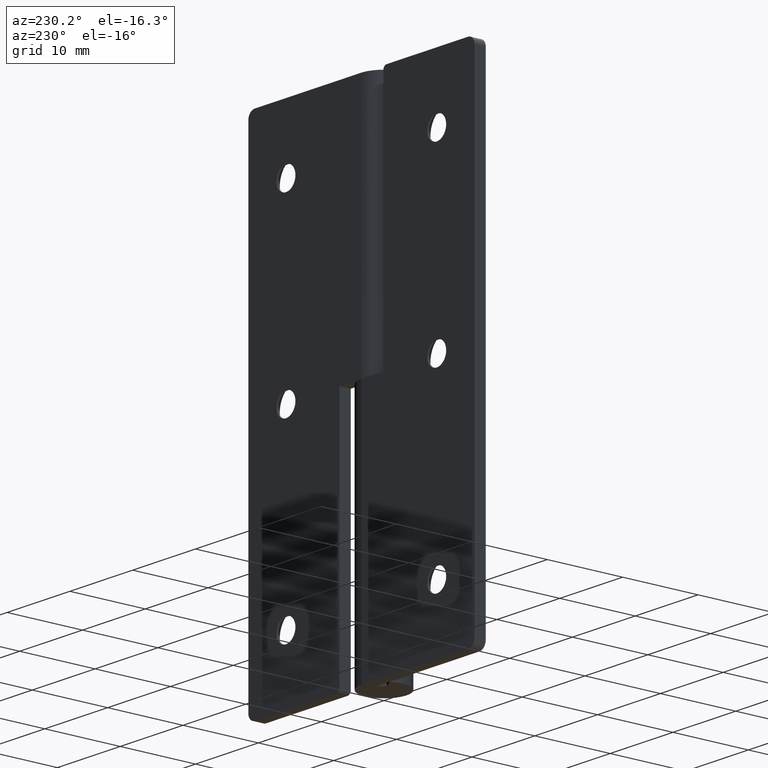
[diagram: clean part render]
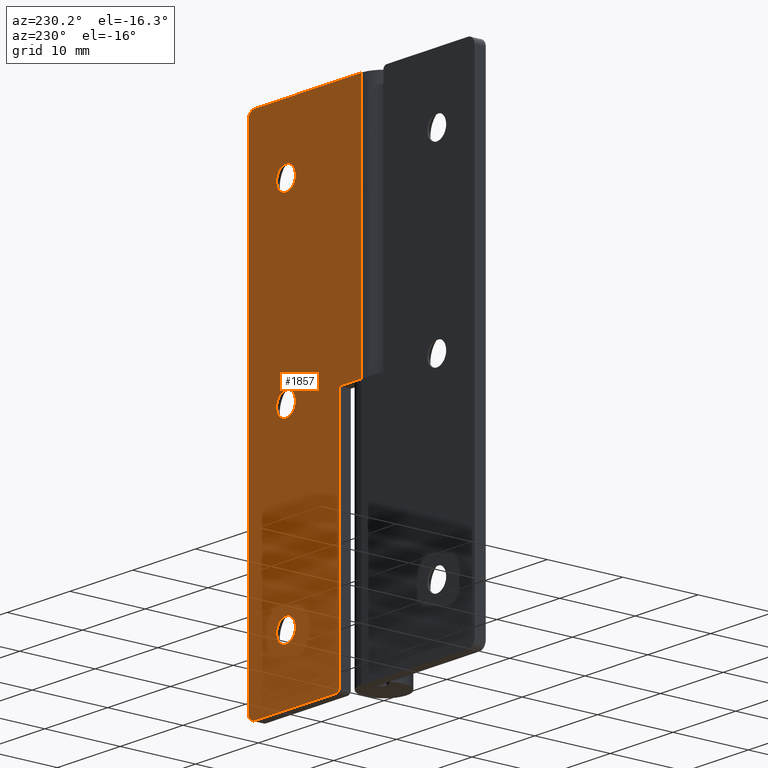
[diagram: same view with one face highlighted and labeled with its STEP entity id]
A machine part, auxiliary view. The second image highlights one B-rep face of the part: STEP entity #1857.
In plain terms, the highlighted face is a freeform B-spline surface patch.
Its self-contained STEP definition (entity closure, byte-faithful):
#553=CARTESIAN_POINT('',(13.489514289519180,3.0,56.677051352206547));
#554=VERTEX_POINT('',#553);
#560=CARTESIAN_POINT('',(12.0,3.0,55.0));
#561=VERTEX_POINT('',#560);
#562=CARTESIAN_POINT('',(13.489514289519184,2.999999999999999,56.677051352206547));
#563=CARTESIAN_POINT('',(13.499999999999996,3.000000000000000,56.588836179701616));
#564=CARTESIAN_POINT('',(13.500000000000000,3.0,56.500000000000000));
#565=CARTESIAN_POINT('',(13.500000000000000,3.0,55.000000000000007));
#566=CARTESIAN_POINT('',(12.0,3.0,55.0));
#574=(BOUNDED_CURVE()B_SPLINE_CURVE(2,(#562,#563,#564,#565,#566),.UNSPECIFIED.,.F.,.U.)B_SPLINE_CURVE_WITH_KNOTS((3,2,3),(0.229562473465401,0.250000000000000,0.500000000000000),.UNSPECIFIED.)CURVE()GEOMETRIC_REPRESENTATION_ITEM()RATIONAL_B_SPLINE_CURVE((0.956026754089407,0.976055948274784,1.0,0.707106781186548,1.0))REPRESENTATION_ITEM(''));
#575=EDGE_CURVE('',#554,#561,#574,.T.);
#577=CARTESIAN_POINT('',(10.502797802390299,3.0,56.408427190320083));
#578=VERTEX_POINT('',#577);
#579=CARTESIAN_POINT('',(12.0,3.0,55.0));
#580=CARTESIAN_POINT('',(10.588940900354590,3.0,55.0));
#581=CARTESIAN_POINT('',(10.502797802390301,3.0,56.408427190320083));
#589=(BOUNDED_CURVE()B_SPLINE_CURVE(2,(#579,#580,#581),.UNSPECIFIED.,.F.,.U.)B_SPLINE_CURVE_WITH_KNOTS((3,3),(0.500000000000000,0.739332962154928),.UNSPECIFIED.)CURVE()GEOMETRIC_REPRESENTATION_ITEM()RATIONAL_B_SPLINE_CURVE((1.0,0.719603993385140,0.976072041486657))REPRESENTATION_ITEM(''));
#590=EDGE_CURVE('',#561,#578,#589,.T.);
#624=CARTESIAN_POINT('',(12.0,3.0,58.0));
#625=VERTEX_POINT('',#624);
#626=CARTESIAN_POINT('',(10.502797802390294,3.000000000000000,56.408427190320090));
#627=CARTESIAN_POINT('',(10.500000000000002,3.000000000000000,56.454170854673421));
#628=CARTESIAN_POINT('',(10.500000000000000,3.0,56.500000000000000));
#629=CARTESIAN_POINT('',(10.500000000000002,3.0,58.0));
#630=CARTESIAN_POINT('',(12.0,3.0,58.0));
#638=(BOUNDED_CURVE()B_SPLINE_CURVE(2,(#626,#627,#628,#629,#630),.UNSPECIFIED.,.F.,.U.)B_SPLINE_CURVE_WITH_KNOTS((3,2,3),(0.739332962154928,0.750000000000000,1.0),.UNSPECIFIED.)CURVE()GEOMETRIC_REPRESENTATION_ITEM()RATIONAL_B_SPLINE_CURVE((0.976072041486657,0.987502787801407,1.0,0.707106781186548,1.0))REPRESENTATION_ITEM(''));
#639=EDGE_CURVE('',#578,#625,#638,.T.);
#641=CARTESIAN_POINT('',(12.0,3.0,58.0));
#642=CARTESIAN_POINT('',(13.332261788528195,3.0,58.0));
#643=CARTESIAN_POINT('',(13.489514289519184,2.999999999999999,56.677051352206547));
#651=(BOUNDED_CURVE()B_SPLINE_CURVE(2,(#641,#642,#643),.UNSPECIFIED.,.F.,.U.)B_SPLINE_CURVE_WITH_KNOTS((3,3),(0.0,0.229562473465401),.UNSPECIFIED.)CURVE()GEOMETRIC_REPRESENTATION_ITEM()RATIONAL_B_SPLINE_CURVE((1.0,0.731050832911764,0.956026754089407))REPRESENTATION_ITEM(''));
#652=EDGE_CURVE('',#625,#554,#651,.T.);
#897=CARTESIAN_POINT('',(13.489514289519180,3.0,32.677051352206547));
#898=VERTEX_POINT('',#897);
#904=CARTESIAN_POINT('',(12.0,3.0,31.0));
#905=VERTEX_POINT('',#904);
#906=CARTESIAN_POINT('',(13.489514289519182,3.000000000000000,32.677051352206554));
#907=CARTESIAN_POINT('',(13.500000000000002,3.000000000000000,32.588836179701616));
#908=CARTESIAN_POINT('',(13.500000000000000,3.0,32.500000000000000));
#909=CARTESIAN_POINT('',(13.500000000000000,3.0,31.000000000000007));
#910=CARTESIAN_POINT('',(12.0,3.0,31.0));
#918=(BOUNDED_CURVE()B_SPLINE_CURVE(2,(#906,#907,#908,#909,#910),.UNSPECIFIED.,.F.,.U.)B_SPLINE_CURVE_WITH_KNOTS((3,2,3),(0.229562473465401,0.250000000000000,0.500000000000000),.UNSPECIFIED.)CURVE()GEOMETRIC_REPRESENTATION_ITEM()RATIONAL_B_SPLINE_CURVE((0.956026754089407,0.976055948274784,1.0,0.707106781186548,1.0))REPRESENTATION_ITEM(''));
#919=EDGE_CURVE('',#898,#905,#918,.T.);
#921=CARTESIAN_POINT('',(10.502797802390299,3.0,32.408427190320097));
#922=VERTEX_POINT('',#921);
#923=CARTESIAN_POINT('',(12.0,3.0,31.0));
#924=CARTESIAN_POINT('',(10.588940900354572,3.0,31.000000000000004));
#925=CARTESIAN_POINT('',(10.502797802390301,2.999999999999999,32.408427190320097));
#933=(BOUNDED_CURVE()B_SPLINE_CURVE(2,(#923,#924,#925),.UNSPECIFIED.,.F.,.U.)B_SPLINE_CURVE_WITH_KNOTS((3,3),(0.500000000000000,0.739332962154930),.UNSPECIFIED.)CURVE()GEOMETRIC_REPRESENTATION_ITEM()RATIONAL_B_SPLINE_CURVE((1.0,0.719603993385137,0.976072041486662))REPRESENTATION_ITEM(''));
#934=EDGE_CURVE('',#905,#922,#933,.T.);
#968=CARTESIAN_POINT('',(12.0,3.0,34.0));
#969=VERTEX_POINT('',#968);
#970=CARTESIAN_POINT('',(10.502797802390296,3.000000000000000,32.408427190320090));
#971=CARTESIAN_POINT('',(10.500000000000007,3.000000000000000,32.454170854673436));
#972=CARTESIAN_POINT('',(10.500000000000000,3.0,32.500000000000000));
#973=CARTESIAN_POINT('',(10.500000000000002,3.0,34.000000000000007));
#974=CARTESIAN_POINT('',(12.0,3.0,34.0));
#982=(BOUNDED_CURVE()B_SPLINE_CURVE(2,(#970,#971,#972,#973,#974),.UNSPECIFIED.,.F.,.U.)B_SPLINE_CURVE_WITH_KNOTS((3,2,3),(0.739332962154929,0.750000000000000,1.0),.UNSPECIFIED.)CURVE()GEOMETRIC_REPRESENTATION_ITEM()RATIONAL_B_SPLINE_CURVE((0.976072041486660,0.987502787801409,1.0,0.707106781186548,1.0))REPRESENTATION_ITEM(''));
#983=EDGE_CURVE('',#922,#969,#982,.T.);
#985=CARTESIAN_POINT('',(12.0,3.0,34.0));
#986=CARTESIAN_POINT('',(13.332261788528191,3.000000000000001,34.0));
#987=CARTESIAN_POINT('',(13.489514289519184,3.0,32.677051352206547));
#995=(BOUNDED_CURVE()B_SPLINE_CURVE(2,(#985,#986,#987),.UNSPECIFIED.,.F.,.U.)B_SPLINE_CURVE_WITH_KNOTS((3,3),(0.0,0.229562473465401),.UNSPECIFIED.)CURVE()GEOMETRIC_REPRESENTATION_ITEM()RATIONAL_B_SPLINE_CURVE((1.0,0.731050832911764,0.956026754089406))REPRESENTATION_ITEM(''));
#996=EDGE_CURVE('',#969,#898,#995,.T.);
#1241=CARTESIAN_POINT('',(13.489514289519180,3.0,8.677051352206449));
#1242=VERTEX_POINT('',#1241);
#1248=CARTESIAN_POINT('',(12.0,3.0,6.999999999999901));
#1249=VERTEX_POINT('',#1248);
#1250=CARTESIAN_POINT('',(13.489514289519184,3.0,8.677051352206449));
#1251=CARTESIAN_POINT('',(13.500000000000004,3.000000000000000,8.588836179701518));
#1252=CARTESIAN_POINT('',(13.500000000000000,3.0,8.499999999999901));
#1253=CARTESIAN_POINT('',(13.500000000000000,3.0,6.999999999999899));
#1254=CARTESIAN_POINT('',(12.0,3.0,6.999999999999901));
#1262=(BOUNDED_CURVE()B_SPLINE_CURVE(2,(#1250,#1251,#1252,#1253,#1254),.UNSPECIFIED.,.F.,.U.)B_SPLINE_CURVE_WITH_KNOTS((3,2,3),(0.229562473465401,0.250000000000000,0.500000000000000),.UNSPECIFIED.)CURVE()GEOMETRIC_REPRESENTATION_ITEM()RATIONAL_B_SPLINE_CURVE((0.956026754089406,0.976055948274783,1.0,0.707106781186548,1.0))REPRESENTATION_ITEM(''));
#1263=EDGE_CURVE('',#1242,#1249,#1262,.T.);
#1265=CARTESIAN_POINT('',(10.502797802390299,3.0,8.408427190319991));
#1266=VERTEX_POINT('',#1265);
#1267=CARTESIAN_POINT('',(12.0,3.0,6.999999999999901));
#1268=CARTESIAN_POINT('',(10.588940900354572,3.0,6.999999999999900));
#1269=CARTESIAN_POINT('',(10.502797802390301,2.999999999999999,8.408427190319991));
#1277=(BOUNDED_CURVE()B_SPLINE_CURVE(2,(#1267,#1268,#1269),.UNSPECIFIED.,.F.,.U.)B_SPLINE_CURVE_WITH_KNOTS((3,3),(0.500000000000000,0.739332962154930),.UNSPECIFIED.)CURVE()GEOMETRIC_REPRESENTATION_ITEM()RATIONAL_B_SPLINE_CURVE((1.0,0.719603993385137,0.976072041486662))REPRESENTATION_ITEM(''));
#1278=EDGE_CURVE('',#1249,#1266,#1277,.T.);
#1312=CARTESIAN_POINT('',(12.0,3.0,9.999999999999899));
#1313=VERTEX_POINT('',#1312);
#1314=CARTESIAN_POINT('',(10.502797802390296,3.000000000000000,8.408427190319991));
#1315=CARTESIAN_POINT('',(10.500000000000007,3.000000000000000,8.454170854673334));
#1316=CARTESIAN_POINT('',(10.500000000000000,3.0,8.499999999999901));
#1317=CARTESIAN_POINT('',(10.500000000000002,3.0,9.999999999999901));
#1318=CARTESIAN_POINT('',(12.0,3.0,9.999999999999899));
#1326=(BOUNDED_CURVE()B_SPLINE_CURVE(2,(#1314,#1315,#1316,#1317,#1318),.UNSPECIFIED.,.F.,.U.)B_SPLINE_CURVE_WITH_KNOTS((3,2,3),(0.739332962154929,0.750000000000000,1.0),.UNSPECIFIED.)CURVE()GEOMETRIC_REPRESENTATION_ITEM()RATIONAL_B_SPLINE_CURVE((0.976072041486660,0.987502787801409,1.0,0.707106781186548,1.0))REPRESENTATION_ITEM(''));
#1327=EDGE_CURVE('',#1266,#1313,#1326,.T.);
#1329=CARTESIAN_POINT('',(12.0,3.0,9.999999999999899));
#1330=CARTESIAN_POINT('',(13.332261788528189,3.000000000000000,9.999999999999899));
#1331=CARTESIAN_POINT('',(13.489514289519185,3.000000000000000,8.677051352206449));
#1339=(BOUNDED_CURVE()B_SPLINE_CURVE(2,(#1329,#1330,#1331),.UNSPECIFIED.,.F.,.U.)B_SPLINE_CURVE_WITH_KNOTS((3,3),(0.0,0.229562473465401),.UNSPECIFIED.)CURVE()GEOMETRIC_REPRESENTATION_ITEM()RATIONAL_B_SPLINE_CURVE((1.0,0.731050832911764,0.956026754089406))REPRESENTATION_ITEM(''));
#1340=EDGE_CURVE('',#1313,#1242,#1339,.T.);
#1377=CARTESIAN_POINT('',(3.499999999999901,3.0,0.500000000000000));
#1378=VERTEX_POINT('',#1377);
#1384=CARTESIAN_POINT('',(3.999999999999901,3.0,0.0));
#1385=VERTEX_POINT('',#1384);
#1386=CARTESIAN_POINT('',(3.499999999999901,3.0,0.500000000000000));
#1387=CARTESIAN_POINT('',(3.499999999999901,3.0,0.0));
#1388=CARTESIAN_POINT('',(3.999999999999901,3.0,0.0));
#1396=(BOUNDED_CURVE()B_SPLINE_CURVE(2,(#1386,#1387,#1388),.UNSPECIFIED.,.F.,.U.)CURVE()GEOMETRIC_REPRESENTATION_ITEM()QUASI_UNIFORM_CURVE()RATIONAL_B_SPLINE_CURVE((1.0,0.707106781186548,1.0))REPRESENTATION_ITEM(''));
#1397=EDGE_CURVE('',#1378,#1385,#1396,.T.);
#1438=CARTESIAN_POINT('',(18.0,3.0,64.0));
#1439=VERTEX_POINT('',#1438);
#1445=CARTESIAN_POINT('',(17.0,3.0,65.0));
#1446=VERTEX_POINT('',#1445);
#1447=CARTESIAN_POINT('',(18.0,3.0,64.0));
#1448=CARTESIAN_POINT('',(18.000000000000007,3.0,65.0));
#1449=CARTESIAN_POINT('',(17.0,3.0,65.0));
#1457=(BOUNDED_CURVE()B_SPLINE_CURVE(2,(#1447,#1448,#1449),.UNSPECIFIED.,.F.,.U.)CURVE()GEOMETRIC_REPRESENTATION_ITEM()QUASI_UNIFORM_CURVE()RATIONAL_B_SPLINE_CURVE((1.0,0.707106781186548,1.0))REPRESENTATION_ITEM(''));
#1458=EDGE_CURVE('',#1439,#1446,#1457,.T.);
#1499=CARTESIAN_POINT('',(17.0,3.0,0.0));
#1500=VERTEX_POINT('',#1499);
#1506=CARTESIAN_POINT('',(18.0,3.0,1.0));
#1507=VERTEX_POINT('',#1506);
#1508=CARTESIAN_POINT('',(17.0,3.0,0.0));
#1509=CARTESIAN_POINT('',(18.000000000000007,3.0,0.0));
#1510=CARTESIAN_POINT('',(18.0,3.0,1.0));
#1518=(BOUNDED_CURVE()B_SPLINE_CURVE(2,(#1508,#1509,#1510),.UNSPECIFIED.,.F.,.U.)CURVE()GEOMETRIC_REPRESENTATION_ITEM()QUASI_UNIFORM_CURVE()RATIONAL_B_SPLINE_CURVE((1.0,0.707106781186548,1.0))REPRESENTATION_ITEM(''));
#1519=EDGE_CURVE('',#1500,#1507,#1518,.T.);
#1534=CARTESIAN_POINT('',(3.499999999999901,3.0,32.500000000000000));
#1535=VERTEX_POINT('',#1534);
#1536=CARTESIAN_POINT('',(3.499999999999901,3.0,0.500000000000000));
#1537=CARTESIAN_POINT('',(3.499999999999901,3.0,32.500000000000000));
#1538=QUASI_UNIFORM_CURVE('',1,(#1536,#1537),.UNSPECIFIED.,.F.,.U.);
#1539=EDGE_CURVE('',#1378,#1535,#1538,.T.);
#1597=CARTESIAN_POINT('',(0.0,3.0,32.500000000000000));
#1598=VERTEX_POINT('',#1597);
#1618=CARTESIAN_POINT('',(3.499999999999901,3.0,32.500000000000000));
#1619=CARTESIAN_POINT('',(0.0,3.0,32.500000000000000));
#1620=QUASI_UNIFORM_CURVE('',1,(#1618,#1619),.UNSPECIFIED.,.F.,.U.);
#1621=EDGE_CURVE('',#1535,#1598,#1620,.T.);
#1640=CARTESIAN_POINT('',(-0.000000157079587,3.0,65.0));
#1641=VERTEX_POINT('',#1640);
#1642=CARTESIAN_POINT('',(17.0,3.0,65.0));
#1643=CARTESIAN_POINT('',(-0.000000157079587,3.0,65.0));
#1644=QUASI_UNIFORM_CURVE('',1,(#1642,#1643),.UNSPECIFIED.,.F.,.U.);
#1645=EDGE_CURVE('',#1446,#1641,#1644,.T.);
#1739=CARTESIAN_POINT('',(0.0,3.0,32.500000000000000));
#1740=CARTESIAN_POINT('',(-0.000000157079587,3.0,65.0));
#1741=QUASI_UNIFORM_CURVE('',1,(#1739,#1740),.UNSPECIFIED.,.F.,.U.);
#1742=EDGE_CURVE('',#1598,#1641,#1741,.T.);
#1788=CARTESIAN_POINT('',(18.0,3.0,1.0));
#1789=CARTESIAN_POINT('',(18.0,3.0,64.0));
#1790=QUASI_UNIFORM_CURVE('',1,(#1788,#1789),.UNSPECIFIED.,.F.,.U.);
#1791=EDGE_CURVE('',#1507,#1439,#1790,.T.);
#1814=CARTESIAN_POINT('',(17.0,3.0,0.0));
#1815=CARTESIAN_POINT('',(3.999999999999901,3.0,0.0));
#1816=QUASI_UNIFORM_CURVE('',1,(#1814,#1815),.UNSPECIFIED.,.F.,.U.);
#1817=EDGE_CURVE('',#1500,#1385,#1816,.T.);
#1823=CARTESIAN_POINT('',(-0.899100130038219,3.0,-3.246749874017389));
#1824=CARTESIAN_POINT('',(-0.899100130038219,3.0,68.246751617453242));
#1825=CARTESIAN_POINT('',(18.899100455756258,3.0,-3.246749874017389));
#1826=CARTESIAN_POINT('',(18.899100455756258,3.0,68.246751617453242));
#1827=B_SPLINE_SURFACE_WITH_KNOTS('',1,1,((#1823,#1825),(#1824,#1826)),.UNSPECIFIED.,.F.,.F.,.U.,(2,2),(2,2),(0.0,71.493501491470624),(0.0,19.798200585794479),.UNSPECIFIED.);
#1828=ORIENTED_EDGE('',*,*,#1817,.T.);
#1829=ORIENTED_EDGE('',*,*,#1397,.F.);
#1830=ORIENTED_EDGE('',*,*,#1539,.T.);
#1831=ORIENTED_EDGE('',*,*,#1621,.T.);
#1832=ORIENTED_EDGE('',*,*,#1742,.T.);
#1833=ORIENTED_EDGE('',*,*,#1645,.F.);
#1834=ORIENTED_EDGE('',*,*,#1458,.F.);
#1835=ORIENTED_EDGE('',*,*,#1791,.F.);
#1836=ORIENTED_EDGE('',*,*,#1519,.F.);
#1837=EDGE_LOOP('',(#1828,#1829,#1830,#1831,#1832,#1833,#1834,#1835,#1836));
#1838=FACE_OUTER_BOUND('',#1837,.T.);
#1839=ORIENTED_EDGE('',*,*,#1278,.F.);
#1840=ORIENTED_EDGE('',*,*,#1263,.F.);
#1841=ORIENTED_EDGE('',*,*,#1340,.F.);
#1842=ORIENTED_EDGE('',*,*,#1327,.F.);
#1843=EDGE_LOOP('',(#1839,#1840,#1841,#1842));
#1844=FACE_BOUND('',#1843,.T.);
#1845=ORIENTED_EDGE('',*,*,#934,.F.);
#1846=ORIENTED_EDGE('',*,*,#919,.F.);
#1847=ORIENTED_EDGE('',*,*,#996,.F.);
#1848=ORIENTED_EDGE('',*,*,#983,.F.);
#1849=EDGE_LOOP('',(#1845,#1846,#1847,#1848));
#1850=FACE_BOUND('',#1849,.T.);
#1851=ORIENTED_EDGE('',*,*,#590,.F.);
#1852=ORIENTED_EDGE('',*,*,#575,.F.);
#1853=ORIENTED_EDGE('',*,*,#652,.F.);
#1854=ORIENTED_EDGE('',*,*,#639,.F.);
#1855=EDGE_LOOP('',(#1851,#1852,#1853,#1854));
#1856=FACE_BOUND('',#1855,.T.);
#1857=ADVANCED_FACE('',(#1838,#1844,#1850,#1856),#1827,.T.);